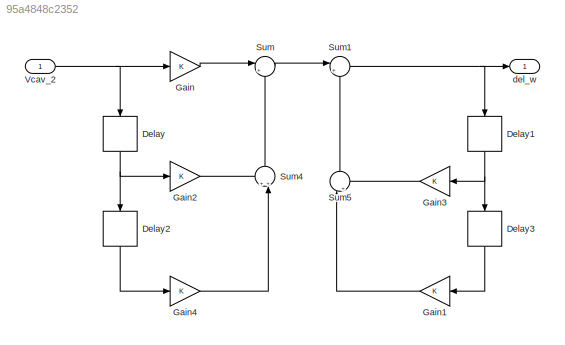
MODEL slx_95a4848c2352
KIND model
CONFIG AbsTol = auto
CONFIG EnableMultiTasking = off
CONFIG FixedStep = auto
CONFIG MaxStep = auto
CONFIG MinStep = auto
CONFIG RelTol = 1e-3
CONFIG SampleTimeConstraint = Unconstrained
CONFIG SolverName = VariableStepAuto
CONFIG StartTime = 0.0
CONFIG StopTime = 10.0
BLOCK [Delay] Delay
  DelayLength = 1
  InitialCondition = 0
  InputPortMap = u0
  NameLocation = left
BLOCK [Delay] Delay1
  DelayLength = 1
  InitialCondition = 0
  InputPortMap = u0
  NameLocation = left
BLOCK [Delay] Delay2
  DelayLength = 1
  InitialCondition = 0
  InputPortMap = u0
  NameLocation = left
BLOCK [Delay] Delay3
  DelayLength = 1
  InitialCondition = 0
  InputPortMap = u0
  NameLocation = left
BLOCK [Gain] Gain
BLOCK [Gain] Gain1
BLOCK [Gain] Gain2
BLOCK [Gain] Gain3
BLOCK [Gain] Gain4
BLOCK [Sum] Sum
  Inputs = |++
BLOCK [Sum] Sum1
  Inputs = |++
BLOCK [Sum] Sum4
  Inputs = ++|
  NameLocation = right
BLOCK [Sum] Sum5
  Inputs = |++
  NameLocation = right
BLOCK [Inport] Vcav_2
BLOCK [Outport] del_w
NET Delay1:1 -> Delay3:1, Gain3:1
LINE Delay2:1 -> Gain4:1
LINE Delay3:1 -> Gain1:1
NET Delay:1 -> Delay2:1, Gain2:1
LINE Gain1:1 -> Sum5:1
LINE Gain2:1 -> Sum4:1
LINE Gain3:1 -> Sum5:2
LINE Gain4:1 -> Sum4:2
LINE Gain:1 -> Sum:1
NET Sum1:1 -> Delay1:1, del_w:1
LINE Sum4:1 -> Sum:2
LINE Sum5:1 -> Sum1:2
LINE Sum:1 -> Sum1:1
NET Vcav_2:1 -> Delay:1, Gain:1
note: NET lines group one-source signal fan-out (src -> all destinations, sorted); 1:1 wires keep LINE
